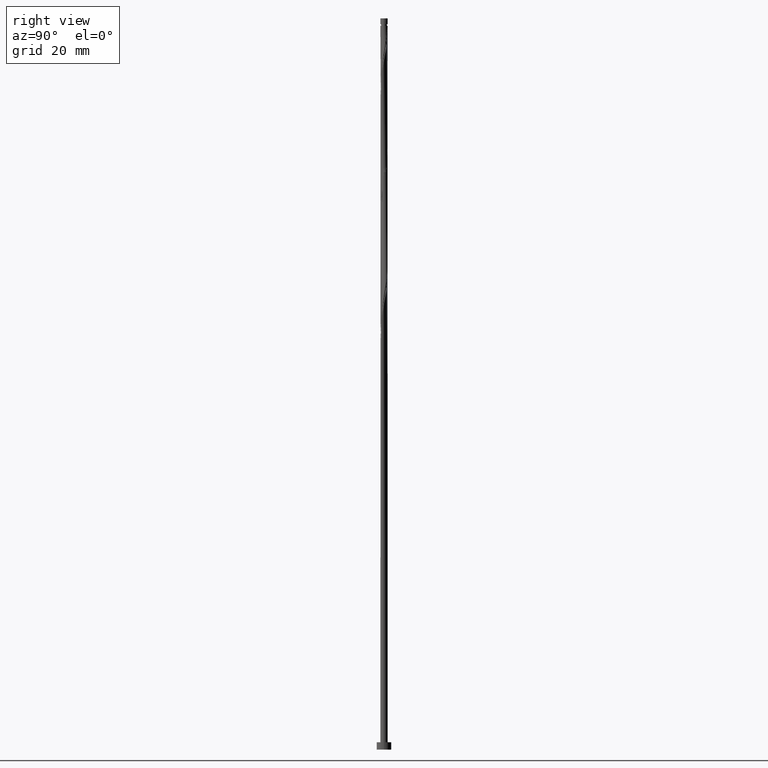
[diagram: clean part render]
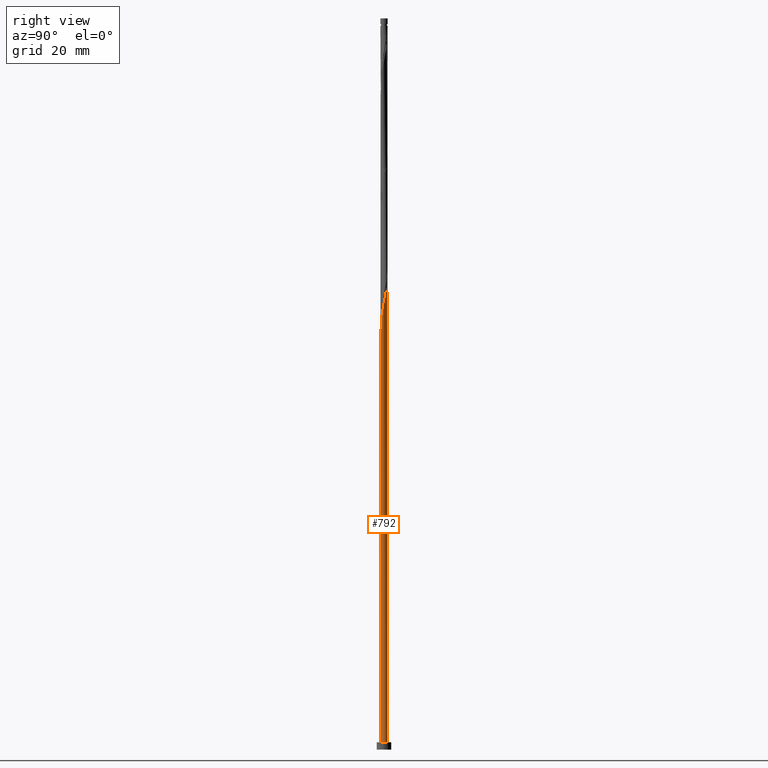
[diagram: same view with one face highlighted and labeled with its STEP entity id]
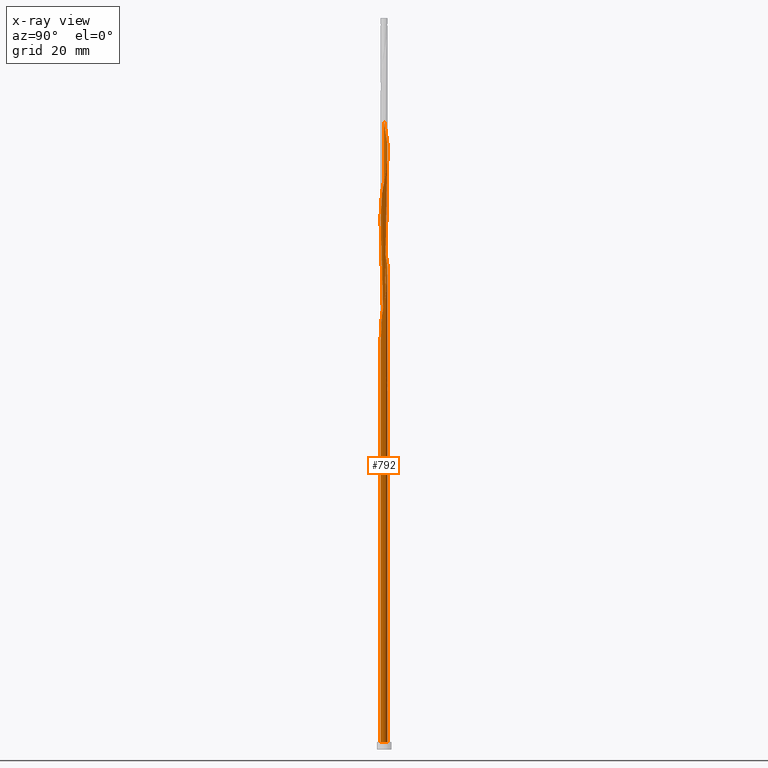
[diagram: x-ray of the same camera — body ghosted, the highlighted face saturated]
A machine part, right view. The second image highlights one B-rep face of the part: STEP entity #792.
The next image is the same camera in x-ray: the body ghosted, the highlighted face saturated — about 0% of this face is hidden behind the body in this view.
In plain terms, the highlighted cylindrical surface (bore or boss wall) has radius 1 mm, axis along (-0, -0, -1).
Its self-contained STEP definition (entity closure, byte-faithful):
#3 =( BOUNDED_CURVE ( )  B_SPLINE_CURVE ( 2, ( #578, #988, #1216, #1123, #1629, #1473, #255, #493, #997, #585, #1103, #1094, #246, #375, #1482 ),
 .UNSPECIFIED., .F., .T. ) 
 B_SPLINE_CURVE_WITH_KNOTS ( ( 3, 2, 2, 2, 2, 2, 2, 3 ),
 ( 0.9295317669814457950, 0.9375000000000000000, 0.9479166666666666297, 0.9583333333333333703, 0.9687500000000000000, 0.9791666666666666297, 0.9895833333333333703, 1.000000000000000000 ),
 .UNSPECIFIED. ) 
 CURVE ( )  GEOMETRIC_REPRESENTATION_ITEM ( )  RATIONAL_B_SPLINE_CURVE ( ( 0.9062941362546323987, 0.9031415850403359258, 0.9090909090909117252, 0.9013135103398300929, 0.9090909090909117252, 0.9013135103398300929, 0.9090909090909117252, 0.9013135103398300929, 0.9090909090909117252, 0.9013135103398300929, 0.9090909090909117252, 0.9013135103398300929, 0.9090909090909117252, 0.9013135103398300929, 0.9090909090909117252 ) ) 
 REPRESENTATION_ITEM ( '' )  );
#39 = CARTESIAN_POINT ( 'NONE',  ( -1.000000000000001332, 6.243205005211398203E-16, 105.2794177808121390 ) ) ;
#55 = CARTESIAN_POINT ( 'NONE',  ( -0.3176631206038505462, -0.9482036394194164330, 111.8985399915778061 ) ) ;
#57 = VERTEX_POINT ( 'NONE', #912 ) ;
#64 = CARTESIAN_POINT ( 'NONE',  ( -0.9538014837673647328, -0.3280169350569818176, 107.0374288804666776 ) ) ;
#73 = CARTESIAN_POINT ( 'NONE',  ( 0.4424964979548751121, 0.9063824962005133656, 127.8707622138000630 ) ) ;
#88 = CARTESIAN_POINT ( 'NONE',  ( -0.3280169350569818731, 0.9538014837673643997, 98.70409554713337741 ) ) ;
#91 = CARTESIAN_POINT ( 'NONE',  ( 0.9799999999999995381, 0.1989974874213338851, 123.0096511026889203 ) ) ;
#93 = DIRECTION ( 'NONE',  ( 2.234078735489109736E-28, -3.469446951953484185E-14, -1.000000000000000000 ) ) ;
#98 = CARTESIAN_POINT ( 'NONE',  ( -0.9482036394194164330, 0.3176631206038503241, 170.2318733249111915 ) ) ;
#106 = CARTESIAN_POINT ( 'NONE',  ( -0.9981116494354768109, 0.06142585173356982647, 171.6207622137999920 ) ) ;
#116 = CARTESIAN_POINT ( 'NONE',  ( 0.3280169350569818176, -0.9538014837673647328, 148.7040955471333348 ) ) ;
#118 = VERTEX_POINT ( 'NONE', #1417 ) ;
#124 = CARTESIAN_POINT ( 'NONE',  ( -0.1989974874213338296, 0.9799999999999995381, 164.6763177693556202 ) ) ;
#131 = CARTESIAN_POINT ( 'NONE',  ( 0.1928297432528261190, 0.9900247826383192784, 162.5929844360222774 ) ) ;
#144 = CARTESIAN_POINT ( 'NONE',  ( -1.000000000000001332, 6.243205005211399189E-16, 105.2794177808121532 ) ) ;
#151 = ORIENTED_EDGE ( 'NONE', *, *, #932, .T. ) ;
#188 = CARTESIAN_POINT ( 'NONE',  ( -0.8951029700910957398, -0.4458594766673707466, 107.7318733249111489 ) ) ;
#194 = CARTESIAN_POINT ( 'NONE',  ( -1.000000000000001332, 6.243205005211399189E-16, 105.2794177808121532 ) ) ;
#205 = CARTESIAN_POINT ( 'NONE',  ( 0.06142585173357048567, 0.9981116494354768109, 129.9540955471333916 ) ) ;
#211 = VECTOR ( 'NONE', #764, 1000.000000000000000 ) ;
#214 = CARTESIAN_POINT ( 'NONE',  ( 0.8336771183575260036, -0.5522521727681066750, 118.8429844360222631 ) ) ;
#223 = CARTESIAN_POINT ( 'NONE',  ( 0.8336771183575260036, -0.5522521727681066750, 152.1763177693556202 ) ) ;
#225 = CARTESIAN_POINT ( 'NONE',  ( 0.000000000000000000, 0.000000000000000000, 2.000000000000000000 ) ) ;
#230 = CARTESIAN_POINT ( 'NONE',  ( -0.9482036394194164330, 0.3176631206038503241, 136.8985399915777919 ) ) ;
#238 = CARTESIAN_POINT ( 'NONE',  ( -0.9063824962005134767, 0.4424964979548748345, 136.2040955471333632 ) ) ;
#242 = EDGE_CURVE ( 'NONE', #1333, #118, #560, .T. ) ;
#245 = CARTESIAN_POINT ( 'NONE',  ( -0.3176631206038505462, -0.9482036394194164330, 145.2318733249111347 ) ) ;
#246 = CARTESIAN_POINT ( 'NONE',  ( -0.06142585173356963218, 0.9981116494354769220, 99.39853999157777764 ) ) ;
#251 = CARTESIAN_POINT ( 'NONE',  ( -0.6623368793961492695, 0.7492061519980823814, 100.7874288804667060 ) ) ;
#254 = CARTESIAN_POINT ( 'NONE',  ( 0.6620078475813382379, 0.7609717405145381974, 159.8152066582444775 ) ) ;
#255 = CARTESIAN_POINT ( 'NONE',  ( -0.7492061519980821593, 0.6623368793961494916, 103.5652066582444633 ) ) ;
#302 = CARTESIAN_POINT ( 'NONE',  ( 0.4458594766673704135, -0.8951029700910959619, 116.0652066582444775 ) ) ;
#325 = CARTESIAN_POINT ( 'NONE',  ( 0.1928297432528261190, 0.9900247826383192784, 129.2596511026889345 ) ) ;
#326 =( BOUNDED_CURVE ( )  B_SPLINE_CURVE ( 2, ( #194, #422, #1290, #64, #188, #1583, #555, #670, #1410, #549, #55, #1195, #798, #411, #1306, #1055, #302, #813, #935, #444, #214, #1183, #926, #1167, #906, #427, #91, #1431, #1200, #779, #803, #571, #1315, #73, #1437, #325, #205, #683, #945, #649, #541, #1048, #484, #700, #1207, #238, #230, #592, #1613, #977, #986, #1093, #1342, #826, #1358, #1590, #473, #1102, #245, #456, #850, #1480, #1622, #116, #599, #959, #360, #843, #223, #1456, #712, #1351, #1488, #707, #1472, #1112, #968, #366, #720, #254, #1230, #727, #1238, #131, #584, #1605, #124, #1214, #605, #353, #449, #951, #341, #464, #98, #836, #106, #1463, #820 ),
 .UNSPECIFIED., .F., .T. ) 
 B_SPLINE_CURVE_WITH_KNOTS ( ( 3, 2, 2, 2, 2, 2, 2, 2, 2, 2, 2, 2, 2, 2, 2, 2, 2, 2, 2, 2, 2, 2, 2, 2, 2, 2, 2, 2, 2, 2, 2, 2, 2, 2, 2, 2, 2, 2, 2, 2, 2, 2, 2, 2, 2, 2, 2, 2, 2, 3 ),
 ( 0.05453176698144555218, 0.06250000000000000000, 0.07291666666666662966, 0.08333333333333337034, 0.09375000000000000000, 0.1041666666666666297, 0.1145833333333333703, 0.1250000000000000000, 0.1354166666666666297, 0.1458333333333333703, 0.1562500000000000000, 0.1666666666666666297, 0.1770833333333333703, 0.1875000000000000000, 0.1979166666666666297, 0.2083333333333333703, 0.2187500000000000000, 0.2291666666666666297, 0.2395833333333333703, 0.2500000000000000000, 0.2604166666666666297, 0.2708333333333333703, 0.2812500000000000000, 0.2916666666666666297, 0.3020833333333333703, 0.3125000000000000000, 0.3229166666666666297, 0.3333333333333333703, 0.3437500000000000000, 0.3541666666666666297, 0.3645833333333333703, 0.3750000000000000000, 0.3854166666666666297, 0.3958333333333333703, 0.4062500000000000000, 0.4166666666666666297, 0.4270833333333333703, 0.4375000000000000000, 0.4479166666666666297, 0.4583333333333333703, 0.4687500000000000000, 0.4791666666666666297, 0.4895833333333333703, 0.5000000000000000000, 0.5104166666666667407, 0.5208333333333332593, 0.5312500000000000000, 0.5416666666666667407, 0.5520833333333332593, 0.5545317669814456840 ),
 .UNSPECIFIED. ) 
 CURVE ( )  GEOMETRIC_REPRESENTATION_ITEM ( )  RATIONAL_B_SPLINE_CURVE ( ( 0.9062941362546429458, 0.9031415850403461398, 0.9090909090909220502, 0.9013135103398405290, 0.9090909090909220502, 0.9013135103398405290, 0.9090909090909220502, 0.9013135103398405290, 0.9090909090909220502, 0.9013135103398405290, 0.9090909090909220502, 0.9013135103398405290, 0.9090909090909220502, 0.9013135103398405290, 0.9090909090909220502, 0.9013135103398405290, 0.9090909090909220502, 0.9013135103398405290, 0.9090909090909220502, 0.9013135103398405290, 0.9090909090909220502, 0.9013135103398405290, 0.9090909090909220502, 0.9013135103398405290, 0.9090909090909220502, 0.9013135103398405290, 0.9090909090909220502, 0.9013135103398405290, 0.9090909090909220502, 0.9013135103398405290, 0.9090909090909220502, 0.9013135103398405290, 0.9090909090909220502, 0.9013135103398405290, 0.9090909090909220502, 0.9013135103398405290, 0.9090909090909220502, 0.9013135103398405290, 0.9090909090909220502, 0.9013135103398405290, 0.9090909090909220502, 0.9013135103398405290, 0.9090909090909220502, 0.9013135103398405290, 0.9090909090909220502, 0.9013135103398405290, 0.9090909090909220502, 0.9013135103398405290, 0.9090909090909220502, 0.9013135103398405290, 0.9090909090909220502, 0.9013135103398405290, 0.9090909090909220502, 0.9013135103398405290, 0.9090909090909220502, 0.9013135103398405290, 0.9090909090909220502, 0.9013135103398405290, 0.9090909090909220502, 0.9013135103398405290, 0.9090909090909220502, 0.9013135103398405290, 0.9090909090909220502, 0.9013135103398405290, 0.9090909090909220502, 0.9013135103398405290, 0.9090909090909220502, 0.9013135103398405290, 0.9090909090909220502, 0.9013135103398405290, 0.9090909090909220502, 0.9013135103398405290, 0.9090909090909220502, 0.9013135103398405290, 0.9090909090909220502, 0.9013135103398405290, 0.9090909090909220502, 0.9013135103398405290, 0.9090909090909220502, 0.9013135103398405290, 0.9090909090909220502, 0.9013135103398405290, 0.9090909090909220502, 0.9013135103398405290, 0.9090909090909220502, 0.9013135103398405290, 0.9090909090909220502, 0.9013135103398405290, 0.9090909090909220502, 0.9013135103398405290, 0.9090909090909220502, 0.9013135103398405290, 0.9090909090909220502, 0.9013135103398405290, 0.9090909090909220502, 0.9013135103398405290, 0.9090909090909220502, 0.9072628343904162174, 0.9062941362546428348 ) ) 
 REPRESENTATION_ITEM ( '' )  );
#341 = CARTESIAN_POINT ( 'NONE',  ( -0.8336771183575263366, 0.5522521727681061199, 168.8429844360222489 ) ) ;
#353 = CARTESIAN_POINT ( 'NONE',  ( -0.5637020182777597865, 0.8364044564148275240, 166.7596511026889630 ) ) ;
#360 = CARTESIAN_POINT ( 'NONE',  ( 0.6623368793961489365, -0.7492061519980826034, 150.7874288804667344 ) ) ;
#366 = CARTESIAN_POINT ( 'NONE',  ( 0.8364044564148276351, 0.5637020182777592314, 158.4263177693556202 ) ) ;
#367 = FACE_OUTER_BOUND ( 'NONE', #1104, .T. ) ;
#375 = CARTESIAN_POINT ( 'NONE',  ( 0.06997803978568620242, 1.006198516232634566, 98.70409554713336320 ) ) ;
#411 = CARTESIAN_POINT ( 'NONE',  ( 0.06997803978568582772, -1.006198516232634343, 113.9818733249111347 ) ) ;
#422 = CARTESIAN_POINT ( 'NONE',  ( -1.000000000000002442, -0.1005037815259216538, 105.8128441500013963 ) ) ;
#427 = CARTESIAN_POINT ( 'NONE',  ( 1.006198516232634343, 0.06997803978568528649, 122.3152066582444633 ) ) ;
#444 = CARTESIAN_POINT ( 'NONE',  ( 0.7609717405145386415, -0.6620078475813377938, 118.1485399915778203 ) ) ;
#446 = ORIENTED_EDGE ( 'NONE', *, *, #1326, .F. ) ;
#449 = CARTESIAN_POINT ( 'NONE',  ( -0.6623368793961492695, 0.7492061519980823814, 167.4540955471333916 ) ) ;
#456 = CARTESIAN_POINT ( 'NONE',  ( -0.1928297432528255917, -0.9900247826383195004, 145.9263177693556202 ) ) ;
#464 = CARTESIAN_POINT ( 'NONE',  ( -0.9063824962005134767, 0.4424964979548748345, 169.5374288804666776 ) ) ;
#473 = CARTESIAN_POINT ( 'NONE',  ( -0.5522521727681061199, -0.8336771183575262256, 143.8429844360222205 ) ) ;
#482 = CARTESIAN_POINT ( 'NONE',  ( -0.9981116494354768109, 0.06142585173356982647, 104.9540955471333916 ) ) ;
#484 = CARTESIAN_POINT ( 'NONE',  ( -0.6623368793961492695, 0.7492061519980823814, 134.1207622138000204 ) ) ;
#487 = ORIENTED_EDGE ( 'NONE', *, *, #535, .F. ) ;
#488 = CARTESIAN_POINT ( 'NONE',  ( -0.9900247826383195004, 0.1928297432528255362, 104.2596511026889061 ) ) ;
#493 = CARTESIAN_POINT ( 'NONE',  ( -0.6620078475813376828, 0.7609717405145390856, 102.8707622138000346 ) ) ;
#497 = CARTESIAN_POINT ( 'NONE',  ( -0.8336771183575263366, 0.5522521727681061199, 102.1763177693556059 ) ) ;
#500 = CARTESIAN_POINT ( 'NONE',  ( 1.000000000000000000, 0.000000000000000000, 2.000000000000000000 ) ) ;
#535 = EDGE_CURVE ( 'NONE', #559, #608, #1457, .T. ) ;
#541 = CARTESIAN_POINT ( 'NONE',  ( -0.4458594766673709131, 0.8951029700910957398, 132.7318733249111915 ) ) ;
#549 = CARTESIAN_POINT ( 'NONE',  ( -0.4424964979548750010, -0.9063824962005134767, 111.2040955471333774 ) ) ;
#555 = CARTESIAN_POINT ( 'NONE',  ( -0.7492061519980823814, -0.6623368793961491585, 109.1207622138000346 ) ) ;
#559 = VERTEX_POINT ( 'NONE', #1111 ) ;
#560 = LINE ( 'NONE', #1530, #211 ) ;
#563 = CARTESIAN_POINT ( 'NONE',  ( 0.1989974874213344402, 0.9799999999999995381, 98.00965110268892033 ) ) ;
#569 = CARTESIAN_POINT ( 'NONE',  ( -0.4458594766673709131, 0.8951029700910957398, 99.39853999157782027 ) ) ;
#571 = CARTESIAN_POINT ( 'NONE',  ( 0.6620078475813382379, 0.7609717405145381974, 126.4818733249111489 ) ) ;
#578 = CARTESIAN_POINT ( 'NONE',  ( -1.000000000000001554, -2.990756888724057300E-16, 107.4065510912324015 ) ) ;
#584 = CARTESIAN_POINT ( 'NONE',  ( 0.06142585173357048567, 0.9981116494354768109, 163.2874288804666776 ) ) ;
#585 = CARTESIAN_POINT ( 'NONE',  ( -0.4424964979548748900, 0.9063824962005138097, 101.4818733249111204 ) ) ;
#592 = CARTESIAN_POINT ( 'NONE',  ( -0.9900247826383195004, 0.1928297432528255362, 137.5929844360222489 ) ) ;
#594 = CYLINDRICAL_SURFACE ( 'NONE', #1448, 1.000000000000000000 ) ;
#597 = CARTESIAN_POINT ( 'NONE',  ( -0.9063824962005134767, 0.4424964979548748345, 102.8707622138000062 ) ) ;
#599 = CARTESIAN_POINT ( 'NONE',  ( 0.4458594766673704135, -0.8951029700910959619, 149.3985399915777919 ) ) ;
#605 = CARTESIAN_POINT ( 'NONE',  ( -0.4458594766673709131, 0.8951029700910957398, 166.0652066582444490 ) ) ;
#606 = DIRECTION ( 'NONE',  ( -1.000000000000000000, 0.000000000000000000, 0.000000000000000000 ) ) ;
#608 = VERTEX_POINT ( 'NONE', #39 ) ;
#628 = EDGE_CURVE ( 'NONE', #559, #1255, #749, .T. ) ;
#649 = CARTESIAN_POINT ( 'NONE',  ( -0.3280169350569818731, 0.9538014837673643997, 132.0374288804667344 ) ) ;
#670 = CARTESIAN_POINT ( 'NONE',  ( -0.6620078475813377938, -0.7609717405145386415, 109.8152066582444917 ) ) ;
#683 = CARTESIAN_POINT ( 'NONE',  ( -0.06997803978568516159, 1.006198516232634343, 130.6485399915778487 ) ) ;
#690 = CARTESIAN_POINT ( 'NONE',  ( -1.000000000000000000, 0.000000000000000000, 200.0000000000000000 ) ) ;
#700 = CARTESIAN_POINT ( 'NONE',  ( -0.7609717405145388636, 0.6620078475813375718, 134.8152066582444775 ) ) ;
#707 = CARTESIAN_POINT ( 'NONE',  ( 1.006198516232634343, 0.06997803978568528649, 155.6485399915778203 ) ) ;
#712 = CARTESIAN_POINT ( 'NONE',  ( 0.9482036394194164330, -0.3176631206038506017, 153.5652066582445059 ) ) ;
#720 = CARTESIAN_POINT ( 'NONE',  ( 0.7492061519980829365, 0.6623368793961487144, 159.1207622138000488 ) ) ;
#727 = CARTESIAN_POINT ( 'NONE',  ( 0.4424964979548751121, 0.9063824962005133656, 161.2040955471334200 ) ) ;
#749 = CIRCLE ( 'NONE', #1421, 1.000000000000000000 ) ;
#750 = ORIENTED_EDGE ( 'NONE', *, *, #821, .F. ) ;
#764 = DIRECTION ( 'NONE',  ( -0.000000000000000000, -0.000000000000000000, -1.000000000000000000 ) ) ;
#779 = CARTESIAN_POINT ( 'NONE',  ( 0.8364044564148276351, 0.5637020182777592314, 125.0929844360222631 ) ) ;
#792 = ADVANCED_FACE ( 'NONE', ( #367 ), #594, .T. ) ;
#798 = CARTESIAN_POINT ( 'NONE',  ( -0.06142585173356988199, -0.9981116494354768109, 113.2874288804666918 ) ) ;
#803 = CARTESIAN_POINT ( 'NONE',  ( 0.7492061519980829365, 0.6623368793961487144, 125.7874288804666776 ) ) ;
#806 = AXIS2_PLACEMENT_3D ( 'NONE', #1085, #960, #1600 ) ;
#813 = CARTESIAN_POINT ( 'NONE',  ( 0.5637020182777592314, -0.8364044564148276351, 116.7596511026889345 ) ) ;
#820 = CARTESIAN_POINT ( 'NONE',  ( -1.000000000000001332, -4.411366410867933746E-16, 171.9460844474787677 ) ) ;
#821 = EDGE_CURVE ( 'NONE', #118, #1255, #3, .T. ) ;
#826 = CARTESIAN_POINT ( 'NONE',  ( -0.8364044564148275240, -0.5637020182777594535, 141.7596511026889061 ) ) ;
#828 = EDGE_CURVE ( 'NONE', #1086, #57, #1568, .T. ) ;
#834 = AXIS2_PLACEMENT_3D ( 'NONE', #225, #969, #1332 ) ;
#836 = CARTESIAN_POINT ( 'NONE',  ( -0.9900247826383195004, 0.1928297432528255362, 170.9263177693556202 ) ) ;
#843 = CARTESIAN_POINT ( 'NONE',  ( 0.7609717405145386415, -0.6620078475813377938, 151.4818733249111347 ) ) ;
#850 = CARTESIAN_POINT ( 'NONE',  ( -0.06142585173356988199, -0.9981116494354768109, 146.6207622138000772 ) ) ;
#853 = ORIENTED_EDGE ( 'NONE', *, *, #1209, .T. ) ;
#890 = CIRCLE ( 'NONE', #806, 1.000000000000000000 ) ;
#906 = CARTESIAN_POINT ( 'NONE',  ( 0.9981116494354768109, -0.06142585173357042322, 121.6207622138000346 ) ) ;
#912 = CARTESIAN_POINT ( 'NONE',  ( -1.000000000000000000, 0.000000000000000000, 2.000000000000000000 ) ) ;
#915 = DIRECTION ( 'NONE',  ( -0.000000000000000000, -0.000000000000000000, -1.000000000000000000 ) ) ;
#926 = CARTESIAN_POINT ( 'NONE',  ( 0.9482036394194164330, -0.3176631206038506017, 120.2318733249111489 ) ) ;
#932 = EDGE_CURVE ( 'NONE', #57, #1086, #890, .T. ) ;
#935 = CARTESIAN_POINT ( 'NONE',  ( 0.6623368793961489365, -0.7492061519980826034, 117.4540955471333632 ) ) ;
#945 = CARTESIAN_POINT ( 'NONE',  ( -0.1989974874213338296, 0.9799999999999995381, 131.3429844360222774 ) ) ;
#951 = CARTESIAN_POINT ( 'NONE',  ( -0.7609717405145388636, 0.6620078475813375718, 168.1485399915778203 ) ) ;
#959 = CARTESIAN_POINT ( 'NONE',  ( 0.5637020182777592314, -0.8364044564148276351, 150.0929844360222205 ) ) ;
#960 = DIRECTION ( 'NONE',  ( 0.000000000000000000, 0.000000000000000000, 1.000000000000000000 ) ) ;
#968 = CARTESIAN_POINT ( 'NONE',  ( 0.8951029700910959619, 0.4458594766673704135, 157.7318733249111347 ) ) ;
#969 = DIRECTION ( 'NONE',  ( 0.000000000000000000, 0.000000000000000000, 1.000000000000000000 ) ) ;
#977 = CARTESIAN_POINT ( 'NONE',  ( -1.006198516232634343, -0.06997803978568609140, 138.9818733249111062 ) ) ;
#986 = CARTESIAN_POINT ( 'NONE',  ( -0.9799999999999995381, -0.1989974874213340239, 139.6763177693555349 ) ) ;
#988 = CARTESIAN_POINT ( 'NONE',  ( -1.000000000000001998, 0.1005037815259249706, 106.8731247220430731 ) ) ;
#997 = CARTESIAN_POINT ( 'NONE',  ( -0.5522521727681061199, 0.8336771183575261146, 102.1763177693555633 ) ) ;
#1017 = CARTESIAN_POINT ( 'NONE',  ( -1.000000000000000888, 0.03074195165767333593, 105.1162540927840183 ) ) ;
#1048 = CARTESIAN_POINT ( 'NONE',  ( -0.5637020182777597865, 0.8364044564148275240, 133.4263177693555633 ) ) ;
#1055 = CARTESIAN_POINT ( 'NONE',  ( 0.3280169350569818176, -0.9538014837673647328, 115.3707622138000346 ) ) ;
#1080 = VECTOR ( 'NONE', #915, 1000.000000000000000 ) ;
#1085 = CARTESIAN_POINT ( 'NONE',  ( 0.000000000000000000, 0.000000000000000000, 2.000000000000000000 ) ) ;
#1086 = VERTEX_POINT ( 'NONE', #500 ) ;
#1093 = CARTESIAN_POINT ( 'NONE',  ( -0.9538014837673647328, -0.3280169350569818176, 140.3707622138000204 ) ) ;
#1094 = CARTESIAN_POINT ( 'NONE',  ( -0.1928297432528254529, 0.9900247826383195004, 100.0929844360222631 ) ) ;
#1102 = CARTESIAN_POINT ( 'NONE',  ( -0.4424964979548750010, -0.9063824962005134767, 144.5374288804666776 ) ) ;
#1103 = CARTESIAN_POINT ( 'NONE',  ( -0.3176631206038499911, 0.9482036394194163220, 100.7874288804666776 ) ) ;
#1104 = EDGE_LOOP ( 'NONE', ( #1609, #446, #853, #151, #1616, #1466, #487, #1163, #750 ) ) ;
#1111 = CARTESIAN_POINT ( 'NONE',  ( -0.1989974874213339129, 0.9799999999999995381, 98.00965110268892033 ) ) ;
#1112 = CARTESIAN_POINT ( 'NONE',  ( 0.9538014837673647328, 0.3280169350569816511, 157.0374288804666776 ) ) ;
#1123 = CARTESIAN_POINT ( 'NONE',  ( -0.9538014837673646218, 0.3280169350569821507, 105.6485399915778203 ) ) ;
#1163 = ORIENTED_EDGE ( 'NONE', *, *, #628, .T. ) ;
#1167 = CARTESIAN_POINT ( 'NONE',  ( 0.9900247826383192784, -0.1928297432528260358, 120.9263177693556202 ) ) ;
#1183 = CARTESIAN_POINT ( 'NONE',  ( 0.9063824962005133656, -0.4424964979548750010, 119.5374288804667202 ) ) ;
#1195 = CARTESIAN_POINT ( 'NONE',  ( -0.1928297432528255917, -0.9900247826383195004, 112.5929844360222631 ) ) ;
#1198 = CARTESIAN_POINT ( 'NONE',  ( -0.1989974874213339129, 0.9799999999999995381, 98.00965110268892033 ) ) ;
#1200 = CARTESIAN_POINT ( 'NONE',  ( 0.8951029700910959619, 0.4458594766673704135, 124.3985399915778061 ) ) ;
#1207 = CARTESIAN_POINT ( 'NONE',  ( -0.8336771183575263366, 0.5522521727681061199, 135.5096511026889630 ) ) ;
#1209 = EDGE_CURVE ( 'NONE', #608, #57, #1575, .T. ) ;
#1214 = CARTESIAN_POINT ( 'NONE',  ( -0.3280169350569818731, 0.9538014837673643997, 165.3707622138000488 ) ) ;
#1216 = CARTESIAN_POINT ( 'NONE',  ( -0.9799999999999995381, 0.1989974874213340517, 106.3429844360222347 ) ) ;
#1230 = CARTESIAN_POINT ( 'NONE',  ( 0.5522521727681063419, 0.8336771183575261146, 160.5096511026889061 ) ) ;
#1238 = CARTESIAN_POINT ( 'NONE',  ( 0.3176631206038506017, 0.9482036394194162110, 161.8985399915778487 ) ) ;
#1255 = VERTEX_POINT ( 'NONE', #563 ) ;
#1290 = CARTESIAN_POINT ( 'NONE',  ( -0.9799999999999995381, -0.1989974874213340239, 106.3429844360222774 ) ) ;
#1306 = CARTESIAN_POINT ( 'NONE',  ( 0.1989974874213339129, -0.9799999999999995381, 114.6763177693555775 ) ) ;
#1308 = CARTESIAN_POINT ( 'NONE',  ( 0.000000000000000000, 0.000000000000000000, 98.00965110268894875 ) ) ;
#1315 = CARTESIAN_POINT ( 'NONE',  ( 0.5522521727681063419, 0.8336771183575261146, 127.1763177693555917 ) ) ;
#1326 = EDGE_CURVE ( 'NONE', #608, #1333, #326, .T. ) ;
#1330 = CARTESIAN_POINT ( 'NONE',  ( -1.000000000000001332, -4.411366410867933746E-16, 171.9460844474787677 ) ) ;
#1332 = DIRECTION ( 'NONE',  ( 1.000000000000000000, 0.000000000000000000, 0.000000000000000000 ) ) ;
#1333 = VERTEX_POINT ( 'NONE', #1330 ) ;
#1342 = CARTESIAN_POINT ( 'NONE',  ( -0.8951029700910957398, -0.4458594766673707466, 141.0652066582444775 ) ) ;
#1351 = CARTESIAN_POINT ( 'NONE',  ( 0.9900247826383192784, -0.1928297432528260358, 154.2596511026888777 ) ) ;
#1353 = DIRECTION ( 'NONE',  ( -0.000000000000000000, -0.000000000000000000, -1.000000000000000000 ) ) ;
#1358 = CARTESIAN_POINT ( 'NONE',  ( -0.7492061519980823814, -0.6623368793961491585, 142.4540955471333348 ) ) ;
#1359 = CARTESIAN_POINT ( 'NONE',  ( 0.000000000000000000, 0.000000000000000000, 200.0000000000000000 ) ) ;
#1378 = CARTESIAN_POINT ( 'NONE',  ( -0.7609717405145388636, 0.6620078475813375718, 101.4818733249111347 ) ) ;
#1410 = CARTESIAN_POINT ( 'NONE',  ( -0.5522521727681061199, -0.8336771183575262256, 110.5096511026889345 ) ) ;
#1417 = CARTESIAN_POINT ( 'NONE',  ( -1.000000000000001554, -2.990756888724057300E-16, 107.4065510912324015 ) ) ;
#1421 = AXIS2_PLACEMENT_3D ( 'NONE', #1308, #93, #1538 ) ;
#1431 = CARTESIAN_POINT ( 'NONE',  ( 0.9538014837673647328, 0.3280169350569816511, 123.7040955471333774 ) ) ;
#1437 = CARTESIAN_POINT ( 'NONE',  ( 0.3176631206038506017, 0.9482036394194162110, 128.5652066582445059 ) ) ;
#1448 = AXIS2_PLACEMENT_3D ( 'NONE', #1359, #1353, #606 ) ;
#1456 = CARTESIAN_POINT ( 'NONE',  ( 0.9063824962005133656, -0.4424964979548750010, 152.8707622138000204 ) ) ;
#1457 =( BOUNDED_CURVE ( )  B_SPLINE_CURVE ( 2, ( #1198, #88, #569, #1627, #251, #1378, #497, #597, #1504, #488, #482, #1017, #144 ),
 .UNSPECIFIED., .F., .T. ) 
 B_SPLINE_CURVE_WITH_KNOTS ( ( 3, 2, 2, 2, 2, 2, 3 ),
 ( 0.000000000000000000, 0.01041666666666662966, 0.02083333333333337034, 0.03125000000000000000, 0.04166666666666662966, 0.05208333333333337034, 0.05453176698144555218 ),
 .UNSPECIFIED. ) 
 CURVE ( )  GEOMETRIC_REPRESENTATION_ITEM ( )  RATIONAL_B_SPLINE_CURVE ( ( 0.9090909090909220502, 0.9013135103398405290, 0.9090909090909220502, 0.9013135103398405290, 0.9090909090909220502, 0.9013135103398405290, 0.9090909090909220502, 0.9013135103398405290, 0.9090909090909220502, 0.9013135103398405290, 0.9090909090909220502, 0.9072628343904163284, 0.9062941362546429458 ) ) 
 REPRESENTATION_ITEM ( '' )  );
#1463 = CARTESIAN_POINT ( 'NONE',  ( -1.000000000000001332, 0.03074195165767061935, 171.7829207594506329 ) ) ;
#1466 = ORIENTED_EDGE ( 'NONE', *, *, #1209, .F. ) ;
#1472 = CARTESIAN_POINT ( 'NONE',  ( 0.9799999999999995381, 0.1989974874213338851, 156.3429844360222489 ) ) ;
#1473 = CARTESIAN_POINT ( 'NONE',  ( -0.8364044564148271910, 0.5637020182777597865, 104.2596511026889488 ) ) ;
#1480 = CARTESIAN_POINT ( 'NONE',  ( 0.06997803978568582772, -1.006198516232634343, 147.3152066582444775 ) ) ;
#1482 = CARTESIAN_POINT ( 'NONE',  ( 0.1989974874213344402, 0.9799999999999995381, 98.00965110268894875 ) ) ;
#1488 = CARTESIAN_POINT ( 'NONE',  ( 0.9981116494354768109, -0.06142585173357042322, 154.9540955471334200 ) ) ;
#1504 = CARTESIAN_POINT ( 'NONE',  ( -0.9482036394194164330, 0.3176631206038503241, 103.5652066582444917 ) ) ;
#1530 = CARTESIAN_POINT ( 'NONE',  ( -1.000000000000000000, 0.000000000000000000, 200.0000000000000000 ) ) ;
#1538 = DIRECTION ( 'NONE',  ( 0.000000000000000000, 1.000000000000000000, -2.775557561562891351E-14 ) ) ;
#1568 = CIRCLE ( 'NONE', #834, 1.000000000000000000 ) ;
#1575 = LINE ( 'NONE', #690, #1080 ) ;
#1583 = CARTESIAN_POINT ( 'NONE',  ( -0.8364044564148275240, -0.5637020182777594535, 108.4263177693555917 ) ) ;
#1590 = CARTESIAN_POINT ( 'NONE',  ( -0.6620078475813377938, -0.7609717405145386415, 143.1485399915778487 ) ) ;
#1600 = DIRECTION ( 'NONE',  ( 1.000000000000000000, 0.000000000000000000, 0.000000000000000000 ) ) ;
#1605 = CARTESIAN_POINT ( 'NONE',  ( -0.06997803978568516159, 1.006198516232634343, 163.9818733249111915 ) ) ;
#1609 = ORIENTED_EDGE ( 'NONE', *, *, #242, .F. ) ;
#1613 = CARTESIAN_POINT ( 'NONE',  ( -0.9981116494354768109, 0.06142585173356982647, 138.2874288804667060 ) ) ;
#1616 = ORIENTED_EDGE ( 'NONE', *, *, #828, .T. ) ;
#1622 = CARTESIAN_POINT ( 'NONE',  ( 0.1989974874213339129, -0.9799999999999995381, 148.0096511026888777 ) ) ;
#1627 = CARTESIAN_POINT ( 'NONE',  ( -0.5637020182777597865, 0.8364044564148275240, 100.0929844360222631 ) ) ;
#1629 = CARTESIAN_POINT ( 'NONE',  ( -0.8951029700910955178, 0.4458594766673708576, 104.9540955471333348 ) ) ;